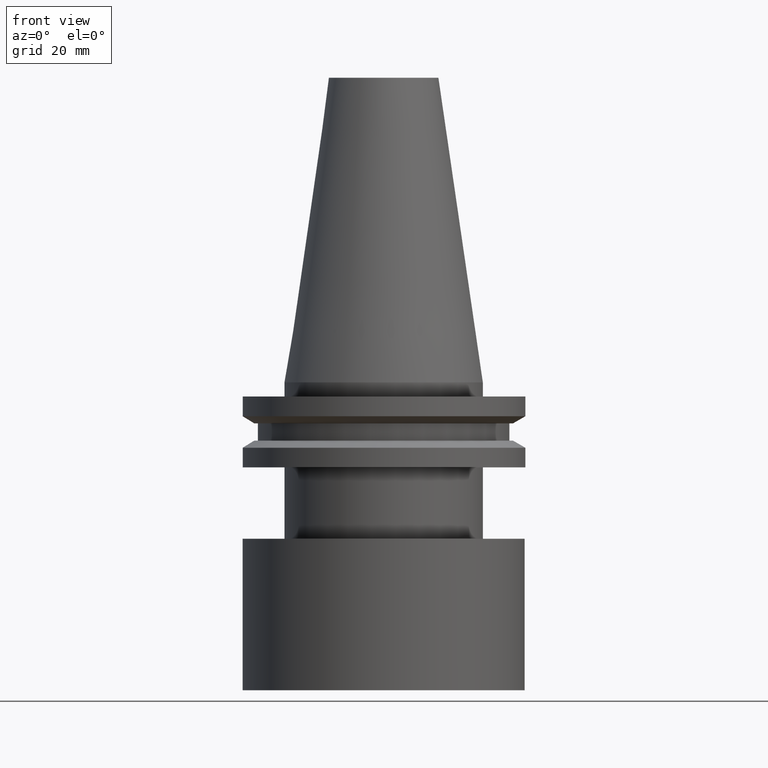
[diagram: clean part render]
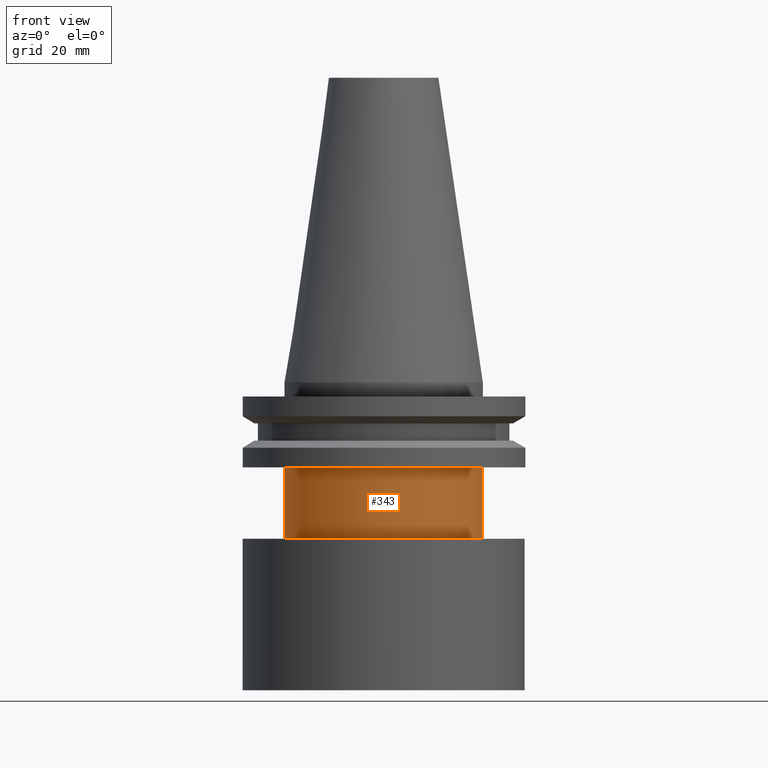
[diagram: same view with one face highlighted and labeled with its STEP entity id]
A machine part, front view. The second image highlights one B-rep face of the part: STEP entity #343.
In plain terms, the highlighted cylindrical surface (bore or boss wall) has radius 22.225 mm, axis along (-0, -0, 1).
Its self-contained STEP definition (entity closure, byte-faithful):
#2 = ORIENTED_EDGE ( 'NONE', *, *, #102, .T. ) ;
#6 = EDGE_LOOP ( 'NONE', ( #2 ) ) ;
#11 = AXIS2_PLACEMENT_3D ( 'NONE', #392, #210, #360 ) ;
#48 = FACE_OUTER_BOUND ( 'NONE', #6, .T. ) ;
#50 = AXIS2_PLACEMENT_3D ( 'NONE', #382, #293, #232 ) ;
#73 = FACE_OUTER_BOUND ( 'NONE', #214, .T. ) ;
#94 = VERTEX_POINT ( 'NONE', #369 ) ;
#102 = EDGE_CURVE ( 'NONE', #94, #94, #175, .T. ) ;
#156 = CARTESIAN_POINT ( 'NONE',  ( 22.22500000000000142, 0.000000000000000000, -19.04999999999999716 ) ) ;
#162 = VERTEX_POINT ( 'NONE', #156 ) ;
#171 = DIRECTION ( 'NONE',  ( 1.000000000000000000, 0.000000000000000000, 0.000000000000000000 ) ) ;
#175 = CIRCLE ( 'NONE', #347, 22.22499999999999787 ) ;
#210 = DIRECTION ( 'NONE',  ( -0.000000000000000000, -0.000000000000000000, 1.000000000000000000 ) ) ;
#214 = EDGE_LOOP ( 'NONE', ( #373 ) ) ;
#216 = EDGE_CURVE ( 'NONE', #162, #162, #259, .T. ) ;
#232 = DIRECTION ( 'NONE',  ( 1.000000000000000000, 0.000000000000000000, 0.000000000000000000 ) ) ;
#236 = CYLINDRICAL_SURFACE ( 'NONE', #11, 22.22500000000000142 ) ;
#259 = CIRCLE ( 'NONE', #50, 22.22500000000000142 ) ;
#293 = DIRECTION ( 'NONE',  ( -0.000000000000000000, -0.000000000000000000, 1.000000000000000000 ) ) ;
#320 = CARTESIAN_POINT ( 'NONE',  ( 0.000000000000000000, 0.000000000000000000, -35.04999999999999716 ) ) ;
#343 = ADVANCED_FACE ( 'NONE', ( #73, #48 ), #236, .T. ) ;
#347 = AXIS2_PLACEMENT_3D ( 'NONE', #320, #359, #171 ) ;
#359 = DIRECTION ( 'NONE',  ( -0.000000000000000000, -0.000000000000000000, 1.000000000000000000 ) ) ;
#360 = DIRECTION ( 'NONE',  ( 1.000000000000000000, 0.000000000000000000, 0.000000000000000000 ) ) ;
#369 = CARTESIAN_POINT ( 'NONE',  ( 22.22499999999999787, 0.000000000000000000, -35.04999999999999716 ) ) ;
#373 = ORIENTED_EDGE ( 'NONE', *, *, #216, .F. ) ;
#382 = CARTESIAN_POINT ( 'NONE',  ( 0.000000000000000000, 0.000000000000000000, -19.04999999999999716 ) ) ;
#392 = CARTESIAN_POINT ( 'NONE',  ( 0.000000000000000000, 0.000000000000000000, 68.25000000000000000 ) ) ;